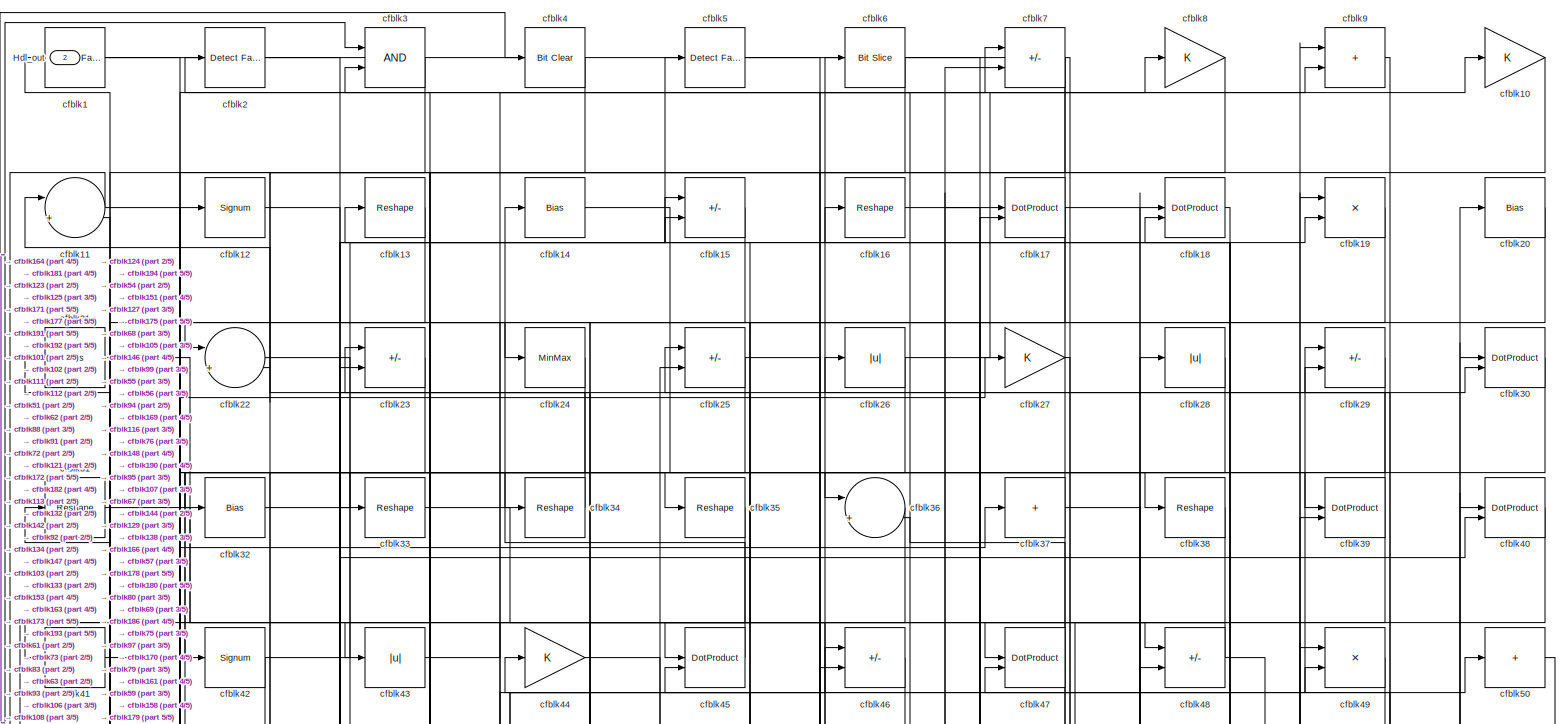
[diagram: root canvas - part 1/5, full width, top band]
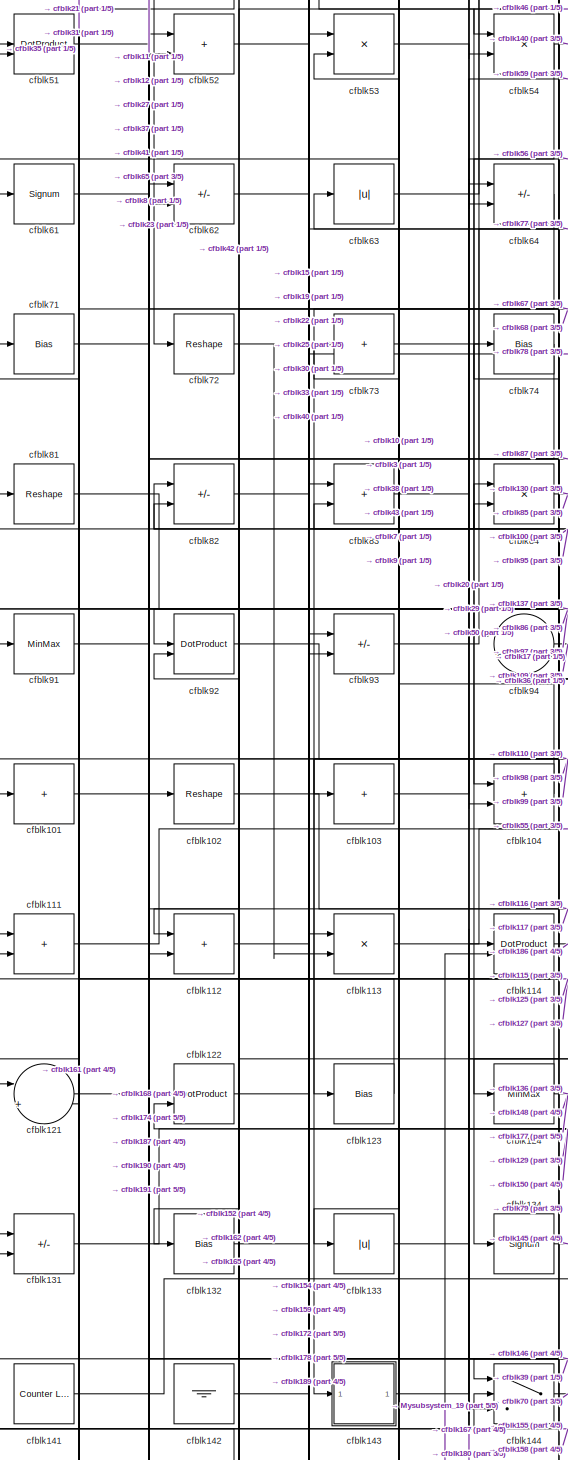
[diagram: root canvas - part 2/5, middle left region]
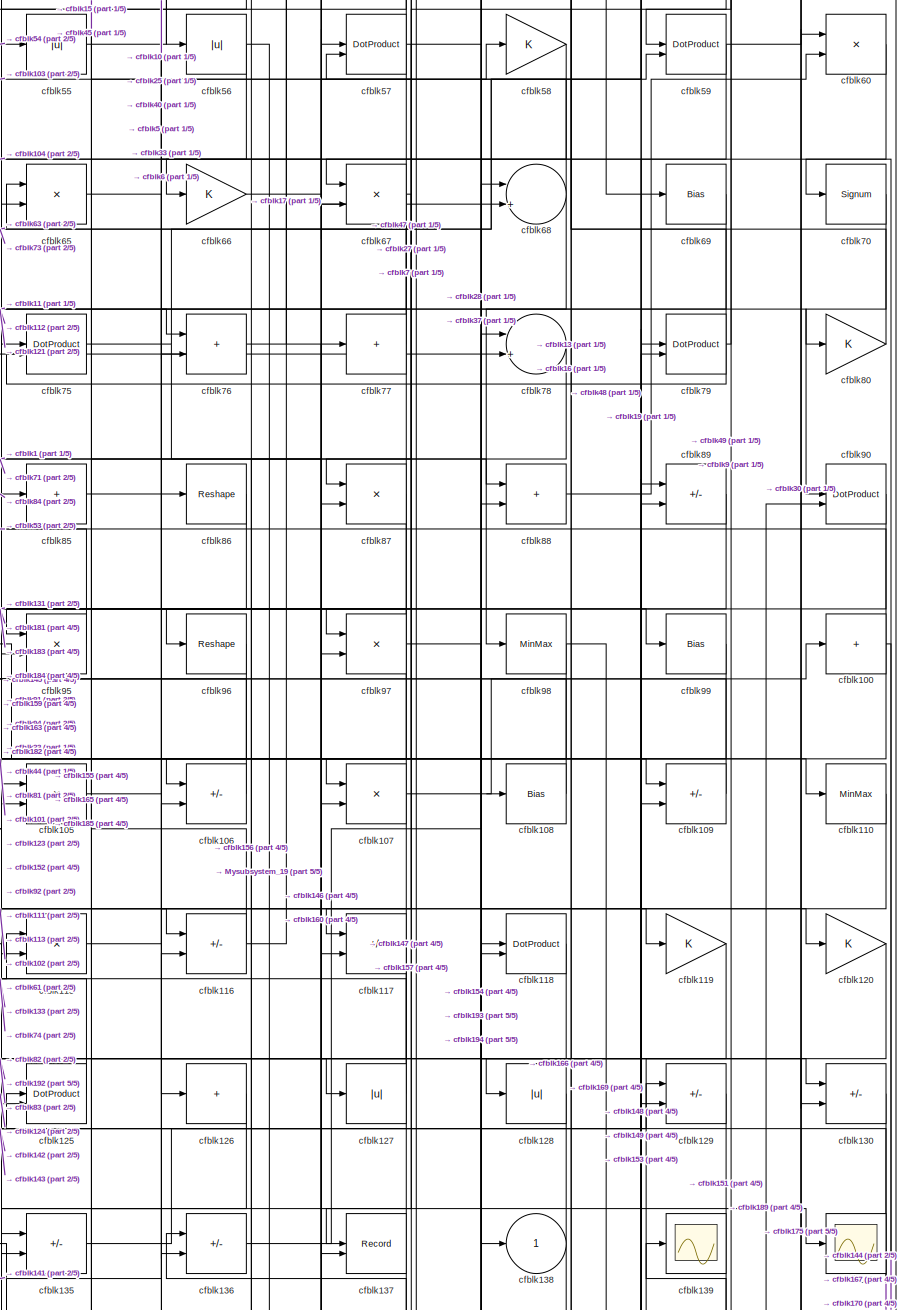
[diagram: root canvas - part 3/5, middle right region]
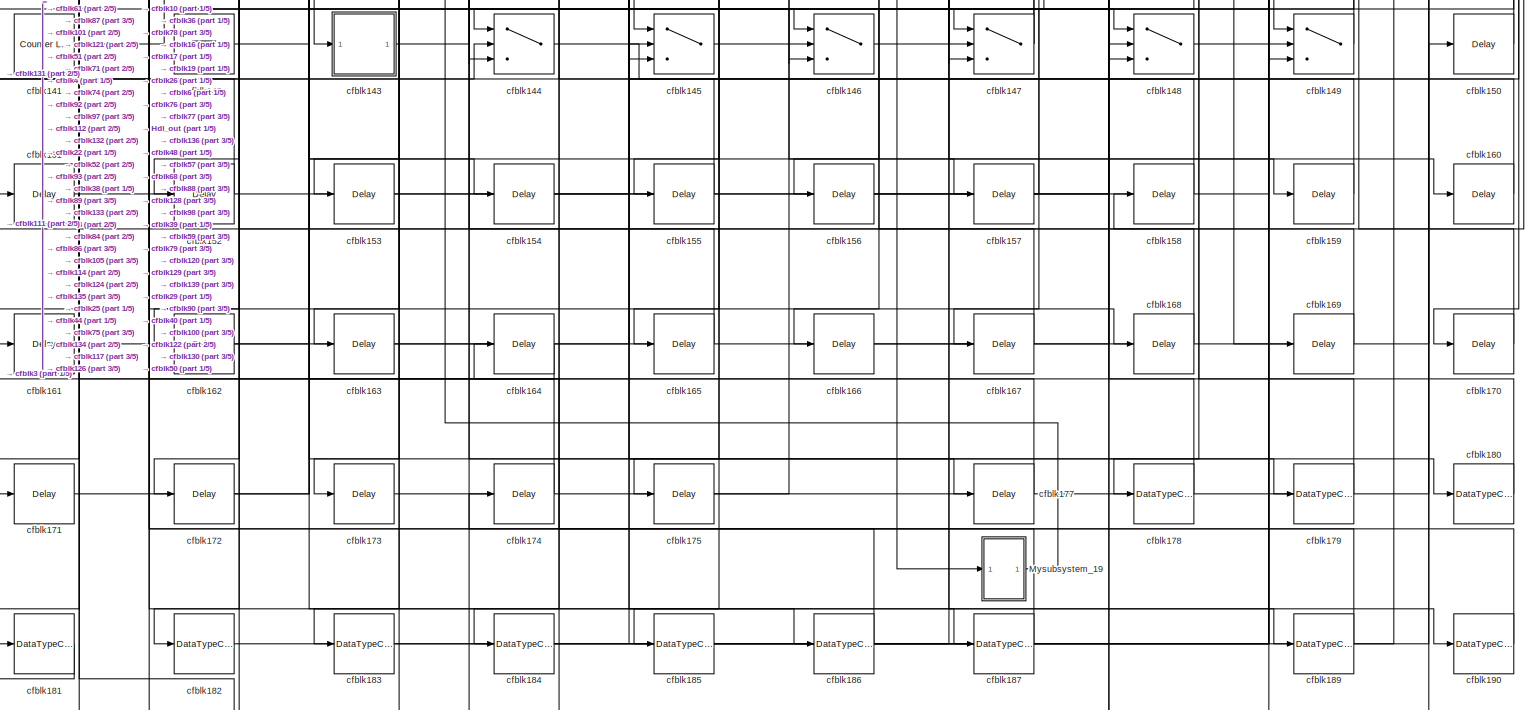
[diagram: root canvas - part 4/5, full width, bottom band]
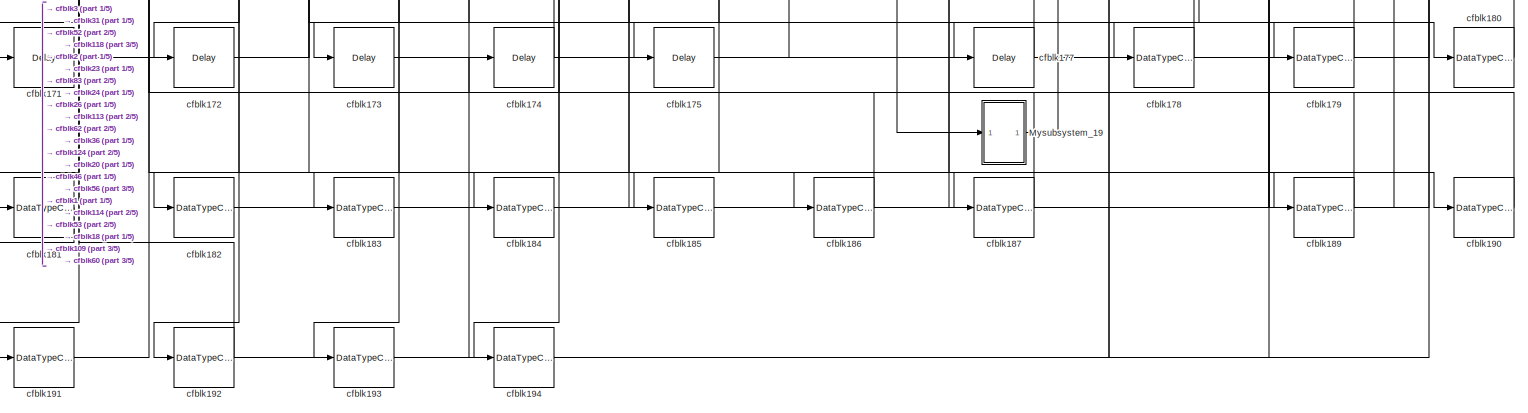
[diagram: root canvas - part 5/5, full width, bottom band]
MODEL slx_e162fd307734
KIND model
CONFIG AbsTol = auto
CONFIG EnableMultiTasking = off
CONFIG FixedStep = auto
CONFIG MaxStep = auto
CONFIG MinStep = auto
CONFIG RelTol = 1e-3
CONFIG SampleTimeConstraint = Unconstrained
CONFIG SolverName = VariableStepAuto
CONFIG StartTime = 0.0
CONFIG StopTime = 10.0
BLOCK [Outport] Hdl_out
  OutDataTypeStr = uint8
  Port = 2
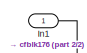
[diagram: Mysubsystem_19 - part 1/2, top center region]
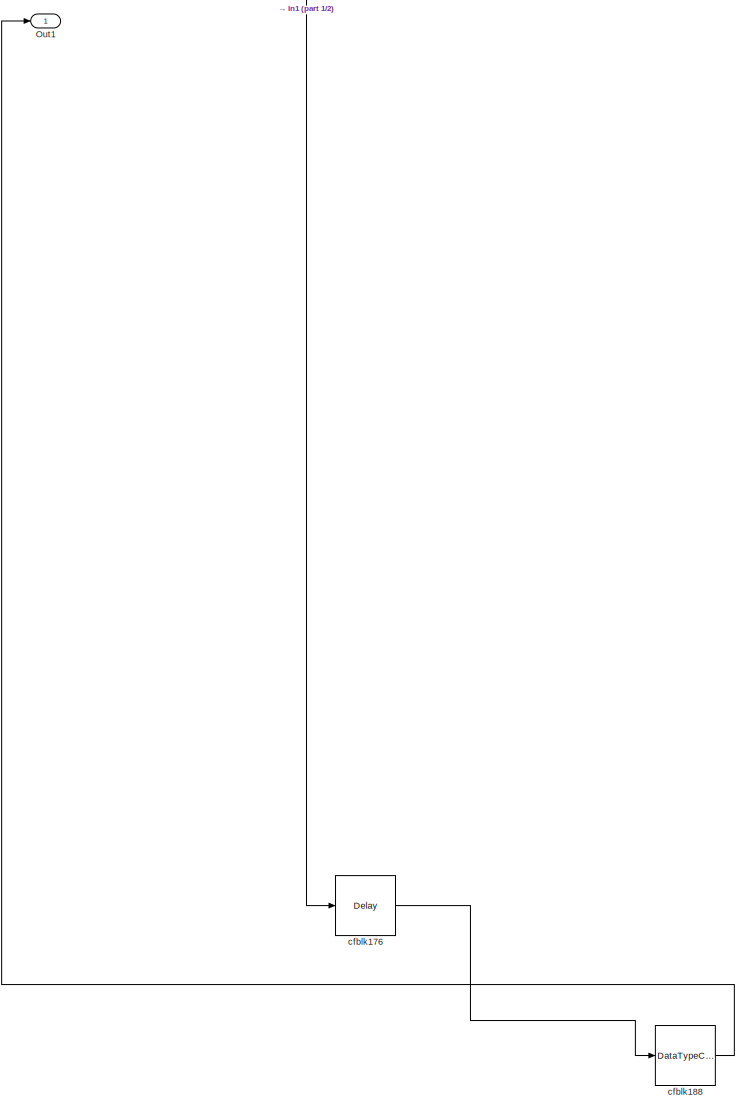
[diagram: Mysubsystem_19 - part 2/2, full width, bottom band]
BLOCK [SubSystem] Mysubsystem_19
  RTWFcnName = Mysubsystem_19
  RTWFcnNameOpts = User specified
  RTWFileNameOpts = Use function name
  RTWSystemCode = Reusable function
  TreatAsAtomicUnit = on
BLOCK [Inport] Mysubsystem_19/In1
BLOCK [Outport] Mysubsystem_19/Out1
BLOCK [Delay] Mysubsystem_19/cfblk176
  InputPortMap = u0
  SampleTime = 1
BLOCK [DataTypeConversion] Mysubsystem_19/cfblk188
  OutDataTypeStr = uint8
  RndMeth = Floor
  SaturateOnIntegerOverflow = off
BLOCK [Reference] cfblk1  REF=hdlsllib/Logic and Bit
Operations/Detect Fall
Negative
  SourceBlock = hdlsllib/Logic and Bit\nOperations/Detect Fall\nNegative
  SourceType = Detect Fall Negative
BLOCK [Gain] cfblk10
  OutDataTypeStr = uint8
BLOCK [Sum] cfblk100
  IconShape = rectangular
  Inputs = +
  OutDataTypeStr = uint8
BLOCK [Sum] cfblk101
  IconShape = rectangular
  Inputs = +
  OutDataTypeStr = uint8
BLOCK [Reshape] cfblk102
BLOCK [Sum] cfblk103
  IconShape = rectangular
  Inputs = +
  OutDataTypeStr = uint8
BLOCK [Sum] cfblk104
  IconShape = rectangular
  OutDataTypeStr = uint8
BLOCK [Product] cfblk105
  Inputs = */
  OutDataTypeStr = uint8
  RndMeth = Zero
  SaturateOnIntegerOverflow = on
BLOCK [Sum] cfblk106
  IconShape = rectangular
  Inputs = +-
  OutDataTypeStr = uint8
BLOCK [Product] cfblk107
  Inputs = */
  OutDataTypeStr = uint8
  RndMeth = Zero
  SaturateOnIntegerOverflow = on
BLOCK [Bias] cfblk108
  Bias = 0.0
  SaturateOnIntegerOverflow = off
BLOCK [Sum] cfblk109
  IconShape = rectangular
  Inputs = +-
  OutDataTypeStr = uint8
BLOCK [Sum] cfblk11
  Inputs = |++
  OutDataTypeStr = uint8
BLOCK [MinMax] cfblk110
  OutDataTypeStr = uint8
BLOCK [Sum] cfblk111
  IconShape = rectangular
  OutDataTypeStr = uint8
BLOCK [Sum] cfblk112
  IconShape = rectangular
  OutDataTypeStr = uint8
BLOCK [Product] cfblk113
  Inputs = */
  OutDataTypeStr = uint8
  RndMeth = Zero
  SaturateOnIntegerOverflow = on
BLOCK [DotProduct] cfblk114
  OutDataTypeStr = uint8
BLOCK [Product] cfblk115
  Inputs = */
  OutDataTypeStr = uint8
  RndMeth = Zero
  SaturateOnIntegerOverflow = on
BLOCK [Sum] cfblk116
  IconShape = rectangular
  Inputs = +-
  OutDataTypeStr = uint8
BLOCK [Sum] cfblk117
  IconShape = rectangular
  Inputs = +-
  OutDataTypeStr = uint8
BLOCK [DotProduct] cfblk118
  OutDataTypeStr = uint8
BLOCK [Gain] cfblk119
  OutDataTypeStr = uint8
BLOCK [Signum] cfblk12
BLOCK [Gain] cfblk120
  OutDataTypeStr = uint8
BLOCK [Sum] cfblk121
  Inputs = |++
  OutDataTypeStr = uint8
BLOCK [DotProduct] cfblk122
  OutDataTypeStr = uint8
BLOCK [Bias] cfblk123
  Bias = 0.0
  SaturateOnIntegerOverflow = off
BLOCK [MinMax] cfblk124
  OutDataTypeStr = uint8
BLOCK [DotProduct] cfblk125
  OutDataTypeStr = uint8
BLOCK [Sum] cfblk126
  IconShape = rectangular
  Inputs = +
  OutDataTypeStr = uint8
BLOCK [Abs] cfblk127
  OutDataTypeStr = uint8
  SaturateOnIntegerOverflow = off
BLOCK [Abs] cfblk128
  OutDataTypeStr = uint8
  SaturateOnIntegerOverflow = off
BLOCK [Sum] cfblk129
  IconShape = rectangular
  Inputs = +-
  OutDataTypeStr = uint8
BLOCK [Reshape] cfblk13
BLOCK [Sum] cfblk130
  IconShape = rectangular
  Inputs = +-
  OutDataTypeStr = uint8
BLOCK [Sum] cfblk131
  IconShape = rectangular
  Inputs = +-
  OutDataTypeStr = uint8
BLOCK [Bias] cfblk132
  Bias = 0.0
  SaturateOnIntegerOverflow = off
BLOCK [Abs] cfblk133
  OutDataTypeStr = uint8
  SaturateOnIntegerOverflow = off
BLOCK [Signum] cfblk134
BLOCK [Sum] cfblk135
  IconShape = rectangular
  Inputs = +-
  OutDataTypeStr = uint8
BLOCK [Sum] cfblk136
  IconShape = rectangular
  Inputs = +-
  OutDataTypeStr = uint8
BLOCK [Record] cfblk137
  CompatibilityTag = XY
  FileSettingsInternal = {"entries":[{"content":{"excelSettings":{"content":{},"type":"Streamout.ExcelSettings"}},"type":"Streamout.FileSettingStorage","uuid":""}],"packageUris":["http:\/\/schema.mathworks.com\/mf0\/streamout_blocks\/R2020a"],"version":"1.0"}
  Layout = [1 1]
  SignalsInternal = {"entries":[{"content":{"signals":[{"content":{"blockPath":[],"dimensions":[1],"domain":"","lineColor":"#a2142f","plots":[1],"port":1,"signalID":33310,"signalName":"cfblk58"},"type":"RecordBlkView.Signal","uuid":""},{"content":{"blockPath":[],"dimensions":[1],"domain":"","lineColor":"#139fff","plots":[1],"port":2,"signalID":33313,"signalName":"cfblk81"},"type":"RecordBlkView.Signal","uuid":""}]},"...<+142ch>
  VisualizationBindings = {"xyplotplugin":{"info":[{"series":[{"bindingParametersList":[{"parameter":"X-Axis","signalID":33310,"signalName":"cfblk58"},{"parameter":"Y-Axis","signalID":33313,"signalName":"cfblk81"}],"seriesID":6558}],"subplotID":1}]}}
  st = -1
BLOCK [Outport] cfblk138
  OutDataTypeStr = uint8
  VectorParamsAs1DForOutWhenUnconnected = off
BLOCK [Scope] cfblk139
  Floating = off
  NumInputPorts = 1
  ScopeSpecificationString = Simulink.scopes.TimeScopeBlockCfg('CurrentConfiguration', extmgr.ConfigurationSet(extmgr.Configuration('Core','General UI',true),extmgr.Configuration('Core','Source UI',true),extmgr.Configuration('Sources','WiredSimulink',true,'DataLoggingVariableName','ScopeData2','DataLoggingSaveFormat','Array','DataLoggingLimitDataPoints',true,'DataLoggingDecimation','1'),extmgr.Configuration('Visuals','Time Do...<+868ch>
BLOCK [Bias] cfblk14
  Bias = 0.0
  SaturateOnIntegerOverflow = off
BLOCK [Scope] cfblk140
  Floating = off
  NumInputPorts = 1
  ScopeSpecificationString = Simulink.scopes.TimeScopeBlockCfg('CurrentConfiguration', extmgr.ConfigurationSet(extmgr.Configuration('Core','General UI',true),extmgr.Configuration('Core','Source UI',true),extmgr.Configuration('Sources','WiredSimulink',true,'DataLoggingVariableName','ScopeData2','DataLoggingSaveFormat','Array','DataLoggingLimitDataPoints',true,'DataLoggingDecimation','1'),extmgr.Configuration('Visuals','Time Do...<+868ch>
BLOCK [Reference] cfblk141  REF=hdlsllib/Sources/Counter
Limited
  SourceBlock = hdlsllib/Sources/Counter\nLimited
  SourceType = Counter Limited
BLOCK [Ground] cfblk142
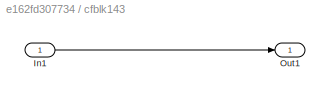
BLOCK [SubSystem] cfblk143
  LibrarySourceBlock = hdlsllib/Ports &\nSubsystems/Subsystem
BLOCK [Inport] cfblk143/In1
BLOCK [Outport] cfblk143/Out1
BLOCK [Switch] cfblk144
  InputSameDT = off
  OutDataTypeStr = uint8
  SaturateOnIntegerOverflow = off
BLOCK [Switch] cfblk145
  InputSameDT = off
  OutDataTypeStr = uint8
  SaturateOnIntegerOverflow = off
BLOCK [Switch] cfblk146
  InputSameDT = off
  OutDataTypeStr = uint8
  SaturateOnIntegerOverflow = off
BLOCK [Switch] cfblk147
  InputSameDT = off
  OutDataTypeStr = uint8
  SaturateOnIntegerOverflow = off
BLOCK [Switch] cfblk148
  InputSameDT = off
  OutDataTypeStr = uint8
  SaturateOnIntegerOverflow = off
BLOCK [Switch] cfblk149
  InputSameDT = off
  OutDataTypeStr = uint8
  SaturateOnIntegerOverflow = off
BLOCK [Sum] cfblk15
  IconShape = rectangular
  Inputs = +-
  OutDataTypeStr = uint8
BLOCK [Delay] cfblk150
  InputPortMap = u0
  SampleTime = 1
BLOCK [Delay] cfblk151
  InputPortMap = u0
  SampleTime = 1
BLOCK [Delay] cfblk152
  InputPortMap = u0
  SampleTime = 1
BLOCK [Delay] cfblk153
  InputPortMap = u0
  SampleTime = 1
BLOCK [Delay] cfblk154
  InputPortMap = u0
  SampleTime = 1
BLOCK [Delay] cfblk155
  InputPortMap = u0
  SampleTime = 1
BLOCK [Delay] cfblk156
  InputPortMap = u0
  SampleTime = 1
BLOCK [Delay] cfblk157
  InputPortMap = u0
  SampleTime = 1
BLOCK [Delay] cfblk158
  InputPortMap = u0
  SampleTime = 1
BLOCK [Delay] cfblk159
  InputPortMap = u0
  SampleTime = 1
BLOCK [Reshape] cfblk16
BLOCK [Delay] cfblk160
  InputPortMap = u0
  SampleTime = 1
BLOCK [Delay] cfblk161
  InputPortMap = u0
  SampleTime = 1
BLOCK [Delay] cfblk162
  InputPortMap = u0
  SampleTime = 1
BLOCK [Delay] cfblk163
  InputPortMap = u0
  SampleTime = 1
BLOCK [Delay] cfblk164
  InputPortMap = u0
  SampleTime = 1
BLOCK [Delay] cfblk165
  InputPortMap = u0
  SampleTime = 1
BLOCK [Delay] cfblk166
  InputPortMap = u0
  SampleTime = 1
BLOCK [Delay] cfblk167
  InputPortMap = u0
  SampleTime = 1
BLOCK [Delay] cfblk168
  InputPortMap = u0
  SampleTime = 1
BLOCK [Delay] cfblk169
  InputPortMap = u0
  SampleTime = 1
BLOCK [DotProduct] cfblk17
  OutDataTypeStr = uint8
BLOCK [Delay] cfblk170
  InputPortMap = u0
  SampleTime = 1
BLOCK [Delay] cfblk171
  InputPortMap = u0
  SampleTime = 1
BLOCK [Delay] cfblk172
  InputPortMap = u0
  SampleTime = 1
BLOCK [Delay] cfblk173
  InputPortMap = u0
  SampleTime = 1
BLOCK [Delay] cfblk174
  InputPortMap = u0
  SampleTime = 1
BLOCK [Delay] cfblk175
  InputPortMap = u0
  SampleTime = 1
BLOCK [Delay] cfblk177
  InputPortMap = u0
  SampleTime = 1
BLOCK [DataTypeConversion] cfblk178
  OutDataTypeStr = uint8
  RndMeth = Floor
  SaturateOnIntegerOverflow = off
BLOCK [DataTypeConversion] cfblk179
  OutDataTypeStr = uint8
  RndMeth = Floor
  SaturateOnIntegerOverflow = off
BLOCK [DotProduct] cfblk18
  OutDataTypeStr = uint8
BLOCK [DataTypeConversion] cfblk180
  OutDataTypeStr = uint8
  RndMeth = Floor
  SaturateOnIntegerOverflow = off
BLOCK [DataTypeConversion] cfblk181
  OutDataTypeStr = uint8
  RndMeth = Floor
  SaturateOnIntegerOverflow = off
BLOCK [DataTypeConversion] cfblk182
  OutDataTypeStr = uint8
  RndMeth = Floor
  SaturateOnIntegerOverflow = off
BLOCK [DataTypeConversion] cfblk183
  OutDataTypeStr = uint8
  RndMeth = Floor
  SaturateOnIntegerOverflow = off
BLOCK [DataTypeConversion] cfblk184
  OutDataTypeStr = uint8
  RndMeth = Floor
  SaturateOnIntegerOverflow = off
BLOCK [DataTypeConversion] cfblk185
  OutDataTypeStr = uint8
  RndMeth = Floor
  SaturateOnIntegerOverflow = off
BLOCK [DataTypeConversion] cfblk186
  OutDataTypeStr = uint8
  RndMeth = Floor
  SaturateOnIntegerOverflow = off
BLOCK [DataTypeConversion] cfblk187
  OutDataTypeStr = uint8
  RndMeth = Floor
  SaturateOnIntegerOverflow = off
BLOCK [DataTypeConversion] cfblk189
  OutDataTypeStr = uint8
  RndMeth = Floor
  SaturateOnIntegerOverflow = off
BLOCK [Product] cfblk19
  Inputs = */
  OutDataTypeStr = uint8
  RndMeth = Zero
  SaturateOnIntegerOverflow = on
BLOCK [DataTypeConversion] cfblk190
  OutDataTypeStr = uint8
  RndMeth = Floor
  SaturateOnIntegerOverflow = off
BLOCK [DataTypeConversion] cfblk191
  OutDataTypeStr = uint8
  RndMeth = Floor
  SaturateOnIntegerOverflow = off
BLOCK [DataTypeConversion] cfblk192
  OutDataTypeStr = uint8
  RndMeth = Floor
  SaturateOnIntegerOverflow = off
BLOCK [DataTypeConversion] cfblk193
  OutDataTypeStr = uint8
  RndMeth = Floor
  SaturateOnIntegerOverflow = off
BLOCK [DataTypeConversion] cfblk194
  OutDataTypeStr = uint8
  RndMeth = Floor
  SaturateOnIntegerOverflow = off
BLOCK [Reference] cfblk2  REF=hdlsllib/Logic and Bit
Operations/Detect Fall
Nonpositive
  SourceBlock = hdlsllib/Logic and Bit\nOperations/Detect Fall\nNonpositive
  SourceType = Detect Fall Nonpositive
BLOCK [Bias] cfblk20
  Bias = 0.0
  SaturateOnIntegerOverflow = off
BLOCK [Bias] cfblk21
  Bias = 0.0
  SaturateOnIntegerOverflow = off
BLOCK [Sum] cfblk22
  Inputs = |++
  OutDataTypeStr = uint8
BLOCK [Sum] cfblk23
  IconShape = rectangular
  Inputs = +-
  OutDataTypeStr = uint8
BLOCK [MinMax] cfblk24
  OutDataTypeStr = uint8
BLOCK [Sum] cfblk25
  IconShape = rectangular
  Inputs = +-
  OutDataTypeStr = uint8
BLOCK [Abs] cfblk26
  OutDataTypeStr = uint8
  SaturateOnIntegerOverflow = off
BLOCK [Gain] cfblk27
  OutDataTypeStr = uint8
BLOCK [Abs] cfblk28
  OutDataTypeStr = uint8
  SaturateOnIntegerOverflow = off
BLOCK [Sum] cfblk29
  IconShape = rectangular
  Inputs = +-
  OutDataTypeStr = uint8
BLOCK [Logic] cfblk3
  AllPortsSameDT = off
  OutDataTypeStr = boolean
BLOCK [DotProduct] cfblk30
  OutDataTypeStr = uint8
BLOCK [Reshape] cfblk31
BLOCK [Bias] cfblk32
  Bias = 0.0
  SaturateOnIntegerOverflow = off
BLOCK [Reshape] cfblk33
BLOCK [Reshape] cfblk34
BLOCK [Reshape] cfblk35
BLOCK [Sum] cfblk36
  Inputs = |++
  OutDataTypeStr = uint8
BLOCK [Sum] cfblk37
  IconShape = rectangular
  Inputs = +
  OutDataTypeStr = uint8
BLOCK [Reshape] cfblk38
BLOCK [DotProduct] cfblk39
  OutDataTypeStr = uint8
BLOCK [Reference] cfblk4  REF=simulink/Logic and Bit
Operations/Bit Clear
  LibrarySourceBlock = hdlsllib/Logic and Bit\nOperations/Bit Clear
  SourceBlock = simulink/Logic and Bit\nOperations/Bit Clear
  SourceType = Bit Clear
BLOCK [DotProduct] cfblk40
  OutDataTypeStr = uint8
BLOCK [MinMax] cfblk41
  OutDataTypeStr = uint8
BLOCK [Signum] cfblk42
BLOCK [Abs] cfblk43
  OutDataTypeStr = uint8
  SaturateOnIntegerOverflow = off
BLOCK [Gain] cfblk44
  OutDataTypeStr = uint8
BLOCK [DotProduct] cfblk45
  OutDataTypeStr = uint8
BLOCK [Sum] cfblk46
  IconShape = rectangular
  Inputs = +-
  OutDataTypeStr = uint8
BLOCK [DotProduct] cfblk47
  OutDataTypeStr = uint8
BLOCK [Sum] cfblk48
  IconShape = rectangular
  Inputs = +-
  OutDataTypeStr = uint8
BLOCK [Product] cfblk49
  Inputs = */
  OutDataTypeStr = uint8
  RndMeth = Zero
  SaturateOnIntegerOverflow = on
BLOCK [Reference] cfblk5  REF=hdlsllib/Logic and Bit
Operations/Detect Fall
Negative
  SourceBlock = hdlsllib/Logic and Bit\nOperations/Detect Fall\nNegative
  SourceType = Detect Fall Negative
BLOCK [Sum] cfblk50
  IconShape = rectangular
  Inputs = +
  OutDataTypeStr = uint8
BLOCK [DotProduct] cfblk51
  OutDataTypeStr = uint8
BLOCK [Sum] cfblk52
  IconShape = rectangular
  OutDataTypeStr = uint8
BLOCK [Product] cfblk53
  Inputs = */
  OutDataTypeStr = uint8
  RndMeth = Zero
  SaturateOnIntegerOverflow = on
BLOCK [Product] cfblk54
  Inputs = */
  OutDataTypeStr = uint8
  RndMeth = Zero
  SaturateOnIntegerOverflow = on
BLOCK [Abs] cfblk55
  OutDataTypeStr = uint8
  SaturateOnIntegerOverflow = off
BLOCK [Abs] cfblk56
  OutDataTypeStr = uint8
  SaturateOnIntegerOverflow = off
BLOCK [DotProduct] cfblk57
  OutDataTypeStr = uint8
BLOCK [Gain] cfblk58
  OutDataTypeStr = uint8
BLOCK [DotProduct] cfblk59
  OutDataTypeStr = uint8
BLOCK [Reference] cfblk6  REF=hdlsllib/Logic and Bit
Operations/Bit Slice
  SourceBlock = hdlsllib/Logic and Bit\nOperations/Bit Slice
  SourceType = Bit Slice
BLOCK [Product] cfblk60
  Inputs = */
  OutDataTypeStr = uint8
  RndMeth = Zero
  SaturateOnIntegerOverflow = on
BLOCK [Signum] cfblk61
BLOCK [Sum] cfblk62
  IconShape = rectangular
  Inputs = +-
  OutDataTypeStr = uint8
BLOCK [Abs] cfblk63
  OutDataTypeStr = uint8
  SaturateOnIntegerOverflow = off
BLOCK [Sum] cfblk64
  IconShape = rectangular
  Inputs = +-
  OutDataTypeStr = uint8
BLOCK [Product] cfblk65
  Inputs = */
  OutDataTypeStr = uint8
  RndMeth = Zero
  SaturateOnIntegerOverflow = on
BLOCK [Gain] cfblk66
  OutDataTypeStr = uint8
BLOCK [Product] cfblk67
  Inputs = */
  OutDataTypeStr = uint8
  RndMeth = Zero
  SaturateOnIntegerOverflow = on
BLOCK [Sum] cfblk68
  Inputs = |++
  OutDataTypeStr = uint8
BLOCK [Bias] cfblk69
  Bias = 0.0
  SaturateOnIntegerOverflow = off
BLOCK [Sum] cfblk7
  IconShape = rectangular
  Inputs = +-
  OutDataTypeStr = uint8
BLOCK [Signum] cfblk70
BLOCK [Bias] cfblk71
  Bias = 0.0
  SaturateOnIntegerOverflow = off
BLOCK [Reshape] cfblk72
BLOCK [Sum] cfblk73
  IconShape = rectangular
  Inputs = +
  OutDataTypeStr = uint8
BLOCK [Bias] cfblk74
  Bias = 0.0
  SaturateOnIntegerOverflow = off
BLOCK [DotProduct] cfblk75
  OutDataTypeStr = uint8
BLOCK [Sum] cfblk76
  IconShape = rectangular
  OutDataTypeStr = uint8
BLOCK [Sum] cfblk77
  IconShape = rectangular
  Inputs = +
  OutDataTypeStr = uint8
BLOCK [Sum] cfblk78
  Inputs = |++
  OutDataTypeStr = uint8
BLOCK [DotProduct] cfblk79
  OutDataTypeStr = uint8
BLOCK [Gain] cfblk8
  OutDataTypeStr = uint8
BLOCK [Gain] cfblk80
  OutDataTypeStr = uint8
BLOCK [Reshape] cfblk81
BLOCK [Sum] cfblk82
  IconShape = rectangular
  Inputs = +-
  OutDataTypeStr = uint8
BLOCK [Sum] cfblk83
  IconShape = rectangular
  OutDataTypeStr = uint8
BLOCK [Product] cfblk84
  Inputs = */
  OutDataTypeStr = uint8
  RndMeth = Zero
  SaturateOnIntegerOverflow = on
BLOCK [Sum] cfblk85
  IconShape = rectangular
  Inputs = +
  OutDataTypeStr = uint8
BLOCK [Reshape] cfblk86
BLOCK [Product] cfblk87
  Inputs = */
  OutDataTypeStr = uint8
  RndMeth = Zero
  SaturateOnIntegerOverflow = on
BLOCK [Sum] cfblk88
  IconShape = rectangular
  OutDataTypeStr = uint8
BLOCK [Sum] cfblk89
  IconShape = rectangular
  Inputs = +-
  OutDataTypeStr = uint8
BLOCK [Sum] cfblk9
  IconShape = rectangular
  OutDataTypeStr = uint8
BLOCK [DotProduct] cfblk90
  OutDataTypeStr = uint8
BLOCK [MinMax] cfblk91
  OutDataTypeStr = uint8
BLOCK [DotProduct] cfblk92
  OutDataTypeStr = uint8
BLOCK [Sum] cfblk93
  IconShape = rectangular
  Inputs = +-
  OutDataTypeStr = uint8
BLOCK [Sum] cfblk94
  Inputs = |++
  OutDataTypeStr = uint8
BLOCK [Product] cfblk95
  Inputs = */
  OutDataTypeStr = uint8
  RndMeth = Zero
  SaturateOnIntegerOverflow = on
BLOCK [Reshape] cfblk96
BLOCK [Product] cfblk97
  Inputs = */
  OutDataTypeStr = uint8
  RndMeth = Zero
  SaturateOnIntegerOverflow = on
BLOCK [MinMax] cfblk98
  OutDataTypeStr = uint8
BLOCK [Bias] cfblk99
  Bias = 0.0
  SaturateOnIntegerOverflow = off
LINE Mysubsystem_19/In1:1 -> Mysubsystem_19/cfblk176:1
LINE Mysubsystem_19/cfblk176:1 -> Mysubsystem_19/cfblk188:1
LINE Mysubsystem_19/cfblk188:1 -> Mysubsystem_19/Out1:1
LINE Mysubsystem_19:1 -> cfblk114:2
NET cfblk100:1 -> cfblk123:1, cfblk170:1, cfblk53:2
NET cfblk101:1 -> cfblk168:1, cfblk8:1
LINE cfblk102:1 -> cfblk116:1
LINE cfblk103:1 -> cfblk59:2
LINE cfblk104:1 -> cfblk83:2
LINE cfblk105:1 -> cfblk10:1
LINE cfblk106:1 -> cfblk44:1
NET cfblk107:1 -> cfblk108:1, cfblk19:1
LINE cfblk108:1 -> cfblk23:1
LINE cfblk109:1 -> cfblk81:1
NET cfblk10:1 -> cfblk133:1, cfblk146:2, cfblk62:2
LINE cfblk110:1 -> cfblk135:2
NET cfblk111:1 -> cfblk12:1, cfblk65:2
LINE cfblk112:1 -> cfblk154:1
NET cfblk113:1 -> cfblk180:1, cfblk55:1
LINE cfblk114:1 -> cfblk186:1
LINE cfblk115:1 -> cfblk106:2
NET cfblk116:1 -> cfblk45:2, cfblk7:2
LINE cfblk117:1 -> cfblk185:1
LINE cfblk118:1 -> cfblk192:1
LINE cfblk119:1 -> cfblk128:1
NET cfblk11:1 -> cfblk144:2, cfblk76:1
LINE cfblk120:1 -> cfblk149:1
LINE cfblk121:1 -> cfblk146:1
LINE cfblk122:1 -> cfblk84:1
LINE cfblk123:1 -> cfblk21:1
NET cfblk124:1 -> cfblk136:2, cfblk148:2, cfblk177:1, cfblk71:1
NET cfblk125:1 -> cfblk111:2, cfblk11:2, cfblk74:1
LINE cfblk126:1 -> cfblk165:1
NET cfblk127:1 -> cfblk15:2, cfblk82:1
LINE cfblk128:1 -> cfblk166:1
LINE cfblk129:1 -> cfblk151:1
LINE cfblk12:1 -> cfblk24:1
LINE cfblk130:1 -> cfblk167:1
LINE cfblk131:1 -> cfblk79:1
NET cfblk132:1 -> cfblk159:1, cfblk40:2
NET cfblk133:1 -> cfblk115:1, cfblk146:3
LINE cfblk134:1 -> cfblk145:1
LINE cfblk135:1 -> cfblk57:1
LINE cfblk136:1 -> cfblk78:1
LINE cfblk13:1 -> cfblk41:1
LINE cfblk141:1 -> cfblk116:2
NET cfblk142:1 -> cfblk129:1, cfblk19:2
LINE cfblk143/In1:1 -> cfblk143/Out1:1
LINE cfblk143:1 -> cfblk125:1
LINE cfblk144:1 -> cfblk70:1
LINE cfblk145:1 -> cfblk157:1
LINE cfblk146:1 -> cfblk77:1
NET cfblk147:1 -> Hdl_out:1, cfblk136:1
LINE cfblk148:1 -> cfblk100:1
LINE cfblk149:1 -> cfblk139:1
LINE cfblk14:1 -> cfblk38:1
LINE cfblk150:1 -> cfblk122:2
LINE cfblk151:1 -> cfblk25:2
LINE cfblk152:1 -> cfblk131:1
LINE cfblk153:1 -> cfblk79:2
LINE cfblk154:1 -> cfblk88:2
LINE cfblk155:1 -> cfblk84:2
LINE cfblk156:1 -> cfblk68:1
LINE cfblk157:1 -> cfblk57:2
LINE cfblk158:1 -> cfblk51:1
LINE cfblk159:1 -> cfblk75:1
LINE cfblk15:1 -> cfblk54:1
LINE cfblk160:1 -> cfblk105:1
LINE cfblk161:1 -> cfblk40:1
LINE cfblk162:1 -> cfblk93:1
LINE cfblk163:1 -> cfblk135:1
LINE cfblk164:1 -> cfblk3:1
LINE cfblk165:1 -> cfblk92:2
LINE cfblk166:1 -> cfblk48:2
LINE cfblk167:1 -> cfblk64:1
LINE cfblk168:1 -> cfblk111:1
LINE cfblk169:1 -> cfblk36:2
LINE cfblk16:1 -> cfblk190:1
LINE cfblk170:1 -> cfblk29:2
LINE cfblk171:1 -> cfblk23:2
LINE cfblk172:1 -> cfblk83:1
LINE cfblk173:1 -> cfblk46:2
LINE cfblk174:1 -> cfblk62:1
LINE cfblk175:1 -> cfblk60:1
LINE cfblk177:1 -> cfblk1:1
LINE cfblk178:1 -> cfblk53:1
LINE cfblk179:1 -> cfblk18:1
NET cfblk17:1 -> cfblk138:1, cfblk43:1, cfblk94:2
LINE cfblk180:1 -> cfblk18:2
LINE cfblk181:1 -> cfblk4:1
NET cfblk182:1 -> cfblk105:2, cfblk17:2
LINE cfblk183:1 -> cfblk150:1
LINE cfblk184:1 -> cfblk89:1
LINE cfblk185:1 -> cfblk89:2
NET cfblk186:1 -> cfblk122:1, cfblk39:2
LINE cfblk187:1 -> cfblk114:1
NET cfblk189:1 -> cfblk164:1, cfblk90:2
LINE cfblk18:1 -> cfblk178:1
LINE cfblk190:1 -> cfblk52:1
LINE cfblk191:1 -> cfblk52:2
NET cfblk192:1 -> cfblk109:2, cfblk174:1, cfblk20:1, cfblk31:1
LINE cfblk193:1 -> cfblk118:1
LINE cfblk194:1 -> cfblk118:2
NET cfblk19:1 -> cfblk147:2, cfblk45:1
NET cfblk1:1 -> cfblk88:1, cfblk95:1
NET cfblk20:1 -> cfblk144:3, cfblk175:1, cfblk22:2
NET cfblk21:1 -> cfblk34:1, cfblk48:1
NET cfblk22:1 -> cfblk134:1, cfblk147:3
LINE cfblk23:1 -> cfblk72:1
LINE cfblk24:1 -> cfblk193:1
NET cfblk25:1 -> cfblk93:2, cfblk99:1
NET cfblk26:1 -> cfblk148:1, cfblk172:1, cfblk173:1, cfblk9:2
LINE cfblk27:1 -> cfblk107:1
LINE cfblk28:1 -> cfblk36:1
LINE cfblk29:1 -> cfblk32:1
LINE cfblk2:1 -> cfblk179:1
LINE cfblk30:1 -> cfblk42:1
NET cfblk31:1 -> cfblk113:1, cfblk171:1, cfblk39:1
LINE cfblk32:1 -> cfblk35:1
LINE cfblk33:1 -> cfblk56:1
LINE cfblk34:1 -> cfblk11:1
LINE cfblk35:1 -> cfblk51:2
NET cfblk36:1 -> cfblk124:1, cfblk194:1
LINE cfblk37:1 -> cfblk129:2
NET cfblk38:1 -> cfblk112:2, cfblk153:1
NET cfblk39:1 -> cfblk144:1, cfblk26:1
LINE cfblk3:1 -> cfblk191:1
NET cfblk40:1 -> cfblk54:2, cfblk76:2
LINE cfblk41:1 -> cfblk102:1
NET cfblk42:1 -> cfblk121:2, cfblk5:1
NET cfblk43:1 -> cfblk61:1, cfblk7:1
LINE cfblk44:1 -> cfblk147:1
LINE cfblk45:1 -> cfblk14:1
NET cfblk46:1 -> cfblk132:1, cfblk94:1
NET cfblk47:1 -> cfblk2:1, cfblk95:2
NET cfblk48:1 -> cfblk47:1, cfblk69:1
LINE cfblk49:1 -> cfblk97:1
LINE cfblk4:1 -> cfblk182:1
LINE cfblk50:1 -> cfblk158:1
NET cfblk51:1 -> cfblk187:1, cfblk27:1
LINE cfblk52:1 -> cfblk189:1
LINE cfblk53:1 -> cfblk97:2
NET cfblk54:1 -> cfblk140:1, cfblk64:2
LINE cfblk55:1 -> cfblk6:1
NET cfblk56:1 -> Mysubsystem_19:1, cfblk104:1
NET cfblk57:1 -> cfblk149:3, cfblk28:1, cfblk87:1
LINE cfblk58:1 -> cfblk137:1
NET cfblk59:1 -> cfblk145:3, cfblk149:2, cfblk30:1
LINE cfblk5:1 -> cfblk67:2
LINE cfblk60:1 -> cfblk66:1
NET cfblk61:1 -> cfblk117:2, cfblk161:1
NET cfblk62:1 -> cfblk30:2, cfblk33:1
LINE cfblk63:1 -> cfblk50:1
LINE cfblk64:1 -> cfblk143:1
NET cfblk65:1 -> cfblk119:1, cfblk126:1, cfblk130:2
NET cfblk66:1 -> cfblk58:1, cfblk68:2
NET cfblk67:1 -> cfblk117:1, cfblk121:1
NET cfblk68:1 -> cfblk112:1, cfblk25:1
LINE cfblk69:1 -> cfblk98:1
NET cfblk6:1 -> cfblk148:3, cfblk163:1
LINE cfblk70:1 -> cfblk90:1
NET cfblk71:1 -> cfblk145:2, cfblk87:2
NET cfblk72:1 -> cfblk113:2, cfblk92:1
NET cfblk73:1 -> cfblk115:2, cfblk3:2, cfblk9:1
LINE cfblk74:1 -> cfblk162:1
NET cfblk75:1 -> cfblk107:2, cfblk49:1, cfblk80:1
NET cfblk76:1 -> cfblk160:1, cfblk17:1
LINE cfblk77:1 -> cfblk63:1
NET cfblk78:1 -> cfblk155:1, cfblk156:1
NET cfblk79:1 -> cfblk16:1, cfblk49:2, cfblk75:2
NET cfblk7:1 -> cfblk103:1, cfblk67:1
NET cfblk80:1 -> cfblk13:1, cfblk47:2
LINE cfblk81:1 -> cfblk137:2
LINE cfblk82:1 -> cfblk65:1
NET cfblk83:1 -> cfblk127:1, cfblk46:1
NET cfblk84:1 -> cfblk130:1, cfblk85:1
LINE cfblk85:1 -> cfblk86:1
NET cfblk86:1 -> cfblk131:2, cfblk184:1
LINE cfblk87:1 -> cfblk181:1
LINE cfblk88:1 -> cfblk60:2
LINE cfblk89:1 -> cfblk183:1
LINE cfblk8:1 -> cfblk22:1
LINE cfblk90:1 -> cfblk96:1
LINE cfblk91:1 -> cfblk37:1
NET cfblk92:1 -> cfblk110:1, cfblk15:1, cfblk78:2
LINE cfblk93:1 -> cfblk29:1
LINE cfblk94:1 -> cfblk109:1
NET cfblk95:1 -> cfblk73:1, cfblk82:2
LINE cfblk96:1 -> cfblk106:1
NET cfblk97:1 -> cfblk120:1, cfblk152:1, cfblk91:1
NET cfblk98:1 -> cfblk101:1, cfblk169:1
NET cfblk99:1 -> cfblk104:2, cfblk125:2
LINE cfblk9:1 -> cfblk59:1
note: NET lines group one-source signal fan-out (src -> all destinations, sorted); 1:1 wires keep LINE
